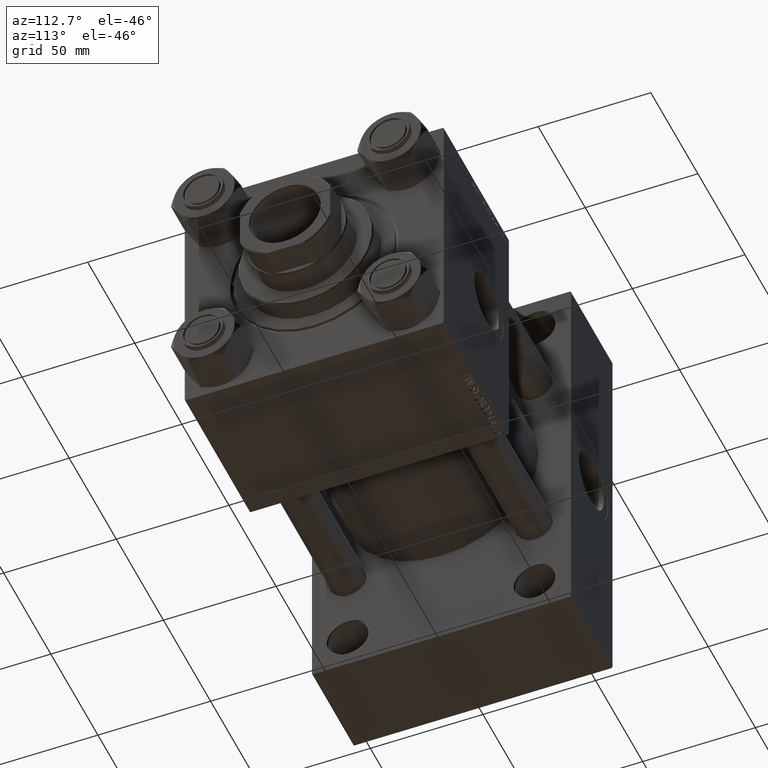
[diagram: clean part render]
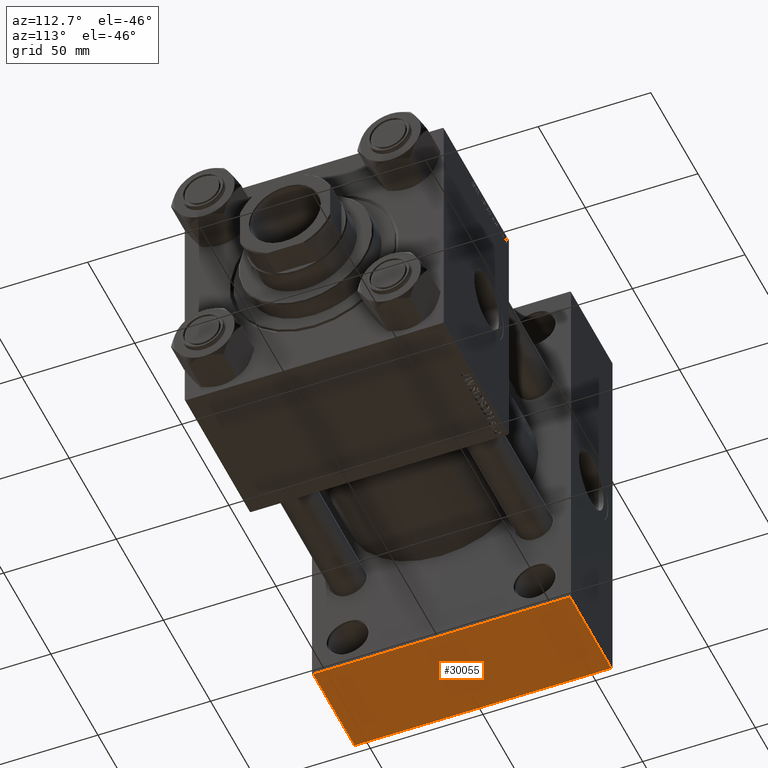
[diagram: same view with one face highlighted and labeled with its STEP entity id]
A machine part, auxiliary view. The second image highlights one B-rep face of the part: STEP entity #30055.
In plain terms, the highlighted planar face has unit normal (0, 0, -1).
Its self-contained STEP definition (entity closure, byte-faithful):
#1351 = CARTESIAN_POINT ( 'NONE',  ( 44.00000000000000000, 57.00000000000000000, -90.00000000000000000 ) ) ;
#1855 = ORIENTED_EDGE ( 'NONE', *, *, #26798, .T. ) ;
#2185 = AXIS2_PLACEMENT_3D ( 'NONE', #35115, #12191, #20089 ) ;
#3709 = VECTOR ( 'NONE', #38800, 1000.000000000000000 ) ;
#4084 = CARTESIAN_POINT ( 'NONE',  ( 44.00000000000000000, 57.50000000000000000, -90.00000000000000000 ) ) ;
#4286 = PLANE ( 'NONE',  #2185 ) ;
#5131 = VECTOR ( 'NONE', #46414, 1000.000000000000000 ) ;
#5660 = LINE ( 'NONE', #20687, #42574 ) ;
#7700 = VERTEX_POINT ( 'NONE', #33285 ) ;
#10610 = EDGE_LOOP ( 'NONE', ( #44478, #1855, #11901, #31732 ) ) ;
#11776 = CARTESIAN_POINT ( 'NONE',  ( 44.00000000000000000, 57.00000000000000000, -90.00000000000000000 ) ) ;
#11901 = ORIENTED_EDGE ( 'NONE', *, *, #20879, .T. ) ;
#12191 = DIRECTION ( 'NONE',  ( 0.000000000000000000, 2.413528314402514583E-16, -1.000000000000000000 ) ) ;
#15757 = FACE_OUTER_BOUND ( 'NONE', #10610, .T. ) ;
#20089 = DIRECTION ( 'NONE',  ( 0.000000000000000000, 1.000000000000000000, 2.413528314402514583E-16 ) ) ;
#20687 = CARTESIAN_POINT ( 'NONE',  ( 0.000000000000000000, -56.99999999999998579, -90.00000000000002842 ) ) ;
#20792 = EDGE_CURVE ( 'NONE', #47262, #7700, #5660, .T. ) ;
#20879 = EDGE_CURVE ( 'NONE', #39074, #47262, #38998, .T. ) ;
#24422 = CARTESIAN_POINT ( 'NONE',  ( 0.000000000000000000, 57.50000000000000000, -90.00000000000000000 ) ) ;
#24755 = DIRECTION ( 'NONE',  ( -1.000000000000000000, 0.000000000000000000, 0.000000000000000000 ) ) ;
#26798 = EDGE_CURVE ( 'NONE', #34500, #39074, #39056, .T. ) ;
#28000 = VECTOR ( 'NONE', #32067, 1000.000000000000000 ) ;
#30055 = ADVANCED_FACE ( 'NONE', ( #15757 ), #4286, .T. ) ;
#31732 = ORIENTED_EDGE ( 'NONE', *, *, #20792, .T. ) ;
#32067 = DIRECTION ( 'NONE',  ( 0.000000000000000000, -1.000000000000000000, -2.413528314402514583E-16 ) ) ;
#33285 = CARTESIAN_POINT ( 'NONE',  ( 0.000000000000000000, -56.99999999999998579, -90.00000000000002842 ) ) ;
#33345 = CARTESIAN_POINT ( 'NONE',  ( 44.00000000000000000, -56.99999999999998579, -90.00000000000002842 ) ) ;
#34500 = VERTEX_POINT ( 'NONE', #38462 ) ;
#35115 = CARTESIAN_POINT ( 'NONE',  ( 44.00000000000000000, 57.50000000000000000, -90.00000000000000000 ) ) ;
#36145 = LINE ( 'NONE', #24422, #28000 ) ;
#38462 = CARTESIAN_POINT ( 'NONE',  ( 0.000000000000000000, 57.00000000000000000, -90.00000000000000000 ) ) ;
#38800 = DIRECTION ( 'NONE',  ( 1.000000000000000000, 0.000000000000000000, 0.000000000000000000 ) ) ;
#38998 = LINE ( 'NONE', #4084, #5131 ) ;
#39056 = LINE ( 'NONE', #11776, #3709 ) ;
#39074 = VERTEX_POINT ( 'NONE', #1351 ) ;
#39581 = EDGE_CURVE ( 'NONE', #34500, #7700, #36145, .T. ) ;
#42574 = VECTOR ( 'NONE', #24755, 1000.000000000000000 ) ;
#44478 = ORIENTED_EDGE ( 'NONE', *, *, #39581, .F. ) ;
#46414 = DIRECTION ( 'NONE',  ( 0.000000000000000000, -1.000000000000000000, -2.413528314402514583E-16 ) ) ;
#47262 = VERTEX_POINT ( 'NONE', #33345 ) ;